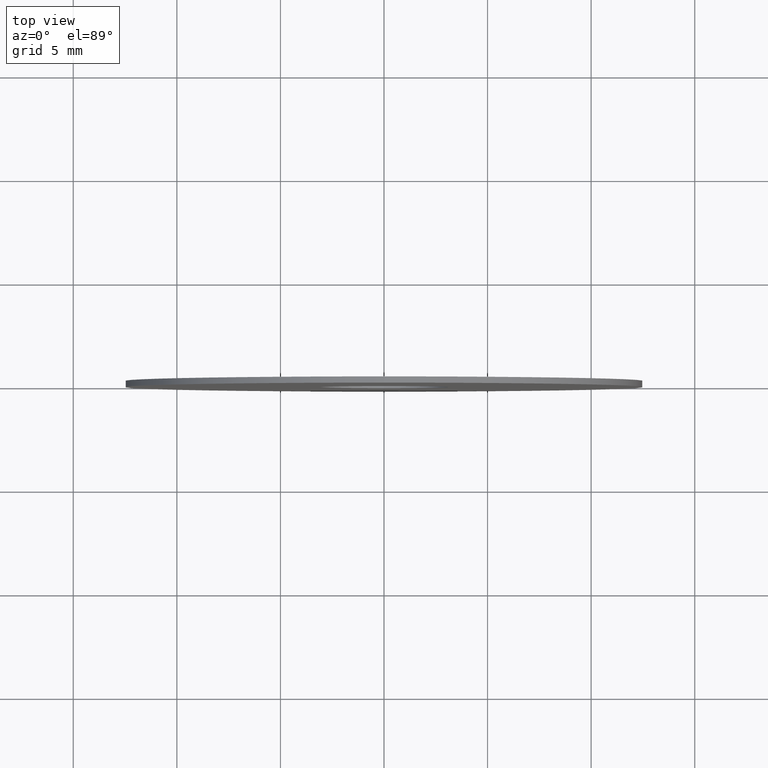
[diagram: clean part render]
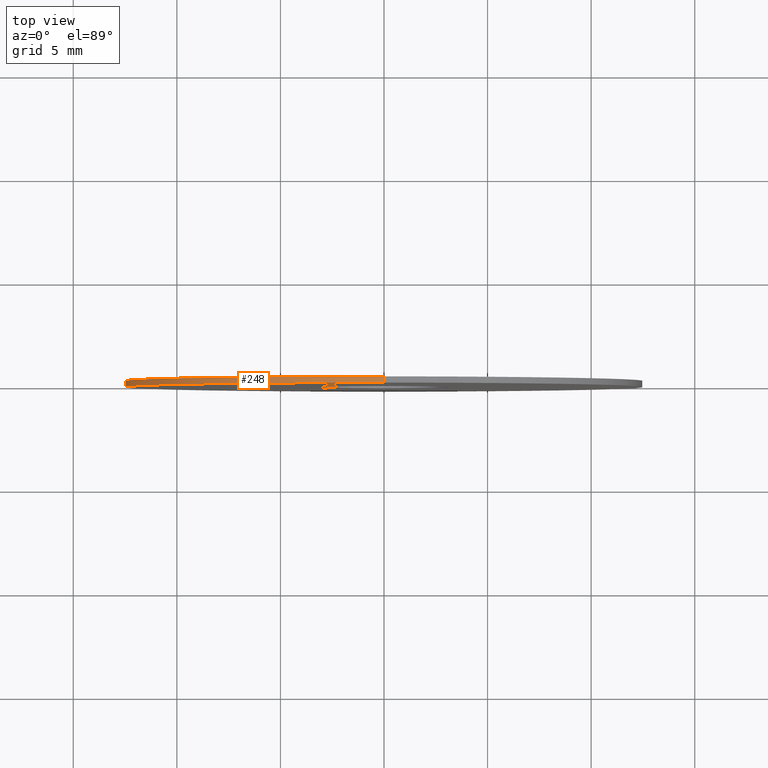
[diagram: same view with one face highlighted and labeled with its STEP entity id]
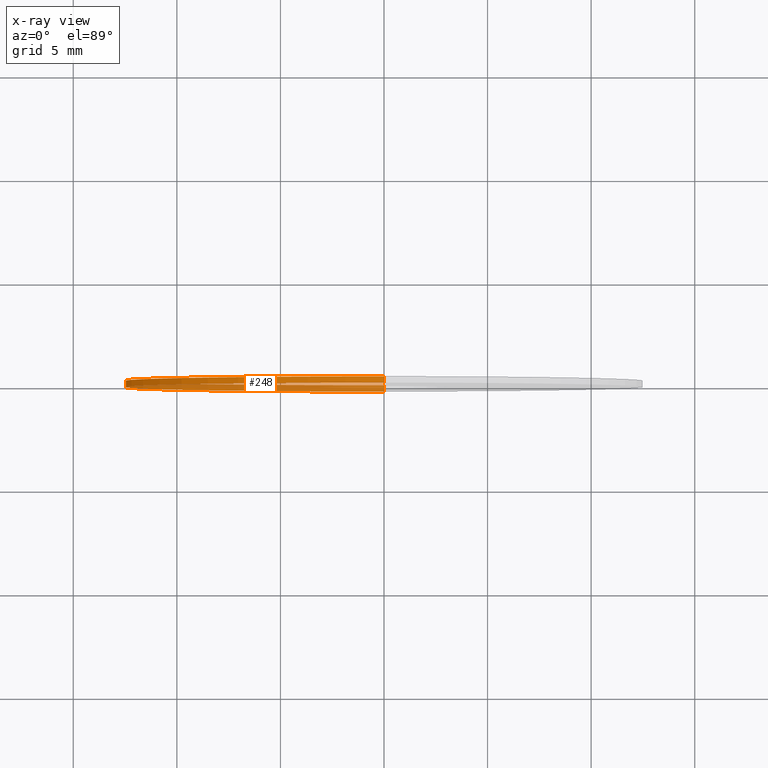
[diagram: x-ray of the same camera — body ghosted, the highlighted face saturated]
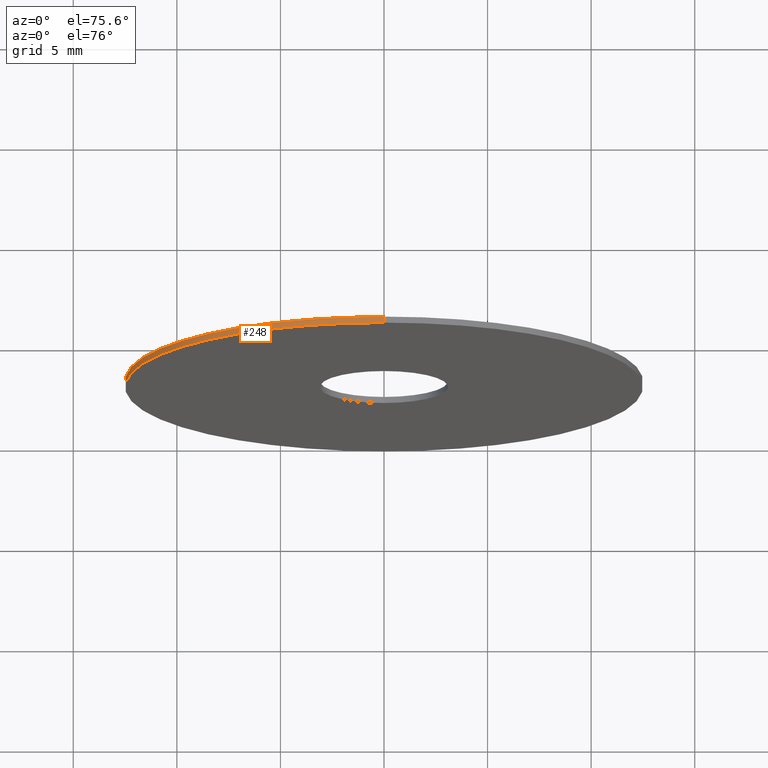
[diagram: same view with one face highlighted and labeled with its STEP entity id]
A machine part, top view. The second image highlights one B-rep face of the part: STEP entity #248.
The next image is the same camera in x-ray: the body ghosted, the highlighted face saturated — about 37% of this face is hidden behind the body in this view.
A second angle (auxiliary view) of the same face is appended — the face is thin or edge-on in the first view.
In plain terms, the highlighted cylindrical surface (partial cylindrical patch) has radius 12.5 mm, axis along (-0, -1, -0).
Its self-contained STEP definition (entity closure, byte-faithful):
#8 = CARTESIAN_POINT ( 'NONE',  ( 1.530808498934191521E-15, 0.1499999999999999944, 12.50000000000000000 ) ) ;
#9 = EDGE_CURVE ( 'NONE', #79, #55, #168, .T. ) ;
#17 = CARTESIAN_POINT ( 'NONE',  ( 0.000000000000000000, 0.1499999999999999944, -12.50000000000000000 ) ) ;
#32 = VERTEX_POINT ( 'NONE', #210 ) ;
#39 = DIRECTION ( 'NONE',  ( 0.000000000000000000, 0.000000000000000000, 1.000000000000000000 ) ) ;
#43 = CARTESIAN_POINT ( 'NONE',  ( 0.000000000000000000, 0.1499999999999999944, 0.000000000000000000 ) ) ;
#48 = FACE_OUTER_BOUND ( 'NONE', #127, .T. ) ;
#55 = VERTEX_POINT ( 'NONE', #77 ) ;
#63 = AXIS2_PLACEMENT_3D ( 'NONE', #227, #133, #39 ) ;
#70 = VERTEX_POINT ( 'NONE', #137 ) ;
#73 = ORIENTED_EDGE ( 'NONE', *, *, #9, .F. ) ;
#77 = CARTESIAN_POINT ( 'NONE',  ( 1.530808498934191521E-15, 0.1499999999999999944, 12.50000000000000000 ) ) ;
#79 = VERTEX_POINT ( 'NONE', #207 ) ;
#90 = DIRECTION ( 'NONE',  ( 0.000000000000000000, 0.000000000000000000, 1.000000000000000000 ) ) ;
#92 = AXIS2_PLACEMENT_3D ( 'NONE', #157, #192, #103 ) ;
#93 = VECTOR ( 'NONE', #150, 1000.000000000000000 ) ;
#100 = LINE ( 'NONE', #8, #231 ) ;
#103 = DIRECTION ( 'NONE',  ( 0.000000000000000000, 0.000000000000000000, -1.000000000000000000 ) ) ;
#114 = ORIENTED_EDGE ( 'NONE', *, *, #158, .T. ) ;
#122 = CYLINDRICAL_SURFACE ( 'NONE', #92, 12.50000000000000000 ) ;
#126 = ORIENTED_EDGE ( 'NONE', *, *, #242, .F. ) ;
#127 = EDGE_LOOP ( 'NONE', ( #126, #73, #114, #186 ) ) ;
#132 = DIRECTION ( 'NONE',  ( 0.000000000000000000, 1.000000000000000000, 0.000000000000000000 ) ) ;
#133 = DIRECTION ( 'NONE',  ( 0.000000000000000000, 1.000000000000000000, 0.000000000000000000 ) ) ;
#137 = CARTESIAN_POINT ( 'NONE',  ( 0.000000000000000000, -0.1499999999999999944, -12.50000000000000000 ) ) ;
#143 = DIRECTION ( 'NONE',  ( -0.000000000000000000, -1.000000000000000000, -0.000000000000000000 ) ) ;
#150 = DIRECTION ( 'NONE',  ( -0.000000000000000000, -1.000000000000000000, -0.000000000000000000 ) ) ;
#156 = AXIS2_PLACEMENT_3D ( 'NONE', #43, #132, #90 ) ;
#157 = CARTESIAN_POINT ( 'NONE',  ( 0.000000000000000000, 0.1499999999999999944, 0.000000000000000000 ) ) ;
#158 = EDGE_CURVE ( 'NONE', #79, #70, #184, .T. ) ;
#168 = CIRCLE ( 'NONE', #156, 12.50000000000000000 ) ;
#169 = EDGE_CURVE ( 'NONE', #70, #32, #176, .T. ) ;
#176 = CIRCLE ( 'NONE', #63, 12.50000000000000000 ) ;
#184 = LINE ( 'NONE', #17, #93 ) ;
#186 = ORIENTED_EDGE ( 'NONE', *, *, #169, .T. ) ;
#192 = DIRECTION ( 'NONE',  ( -0.000000000000000000, -1.000000000000000000, -0.000000000000000000 ) ) ;
#207 = CARTESIAN_POINT ( 'NONE',  ( 0.000000000000000000, 0.1499999999999999944, -12.50000000000000000 ) ) ;
#210 = CARTESIAN_POINT ( 'NONE',  ( 1.530808498934191521E-15, -0.1499999999999999944, 12.50000000000000000 ) ) ;
#227 = CARTESIAN_POINT ( 'NONE',  ( 0.000000000000000000, -0.1499999999999999944, 0.000000000000000000 ) ) ;
#231 = VECTOR ( 'NONE', #143, 1000.000000000000000 ) ;
#242 = EDGE_CURVE ( 'NONE', #55, #32, #100, .T. ) ;
#248 = ADVANCED_FACE ( 'NONE', ( #48 ), #122, .T. ) ;